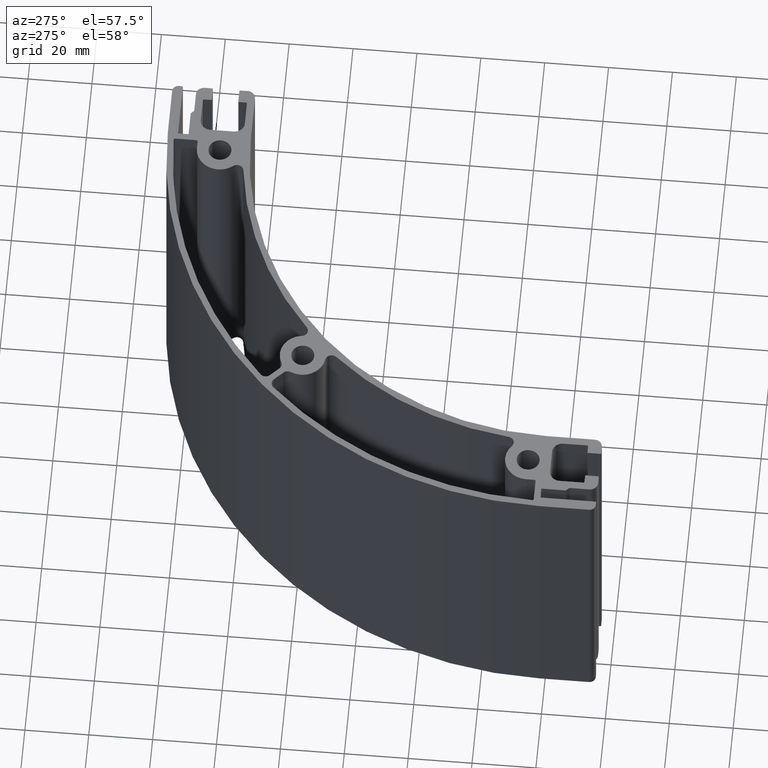
[diagram: clean part render]
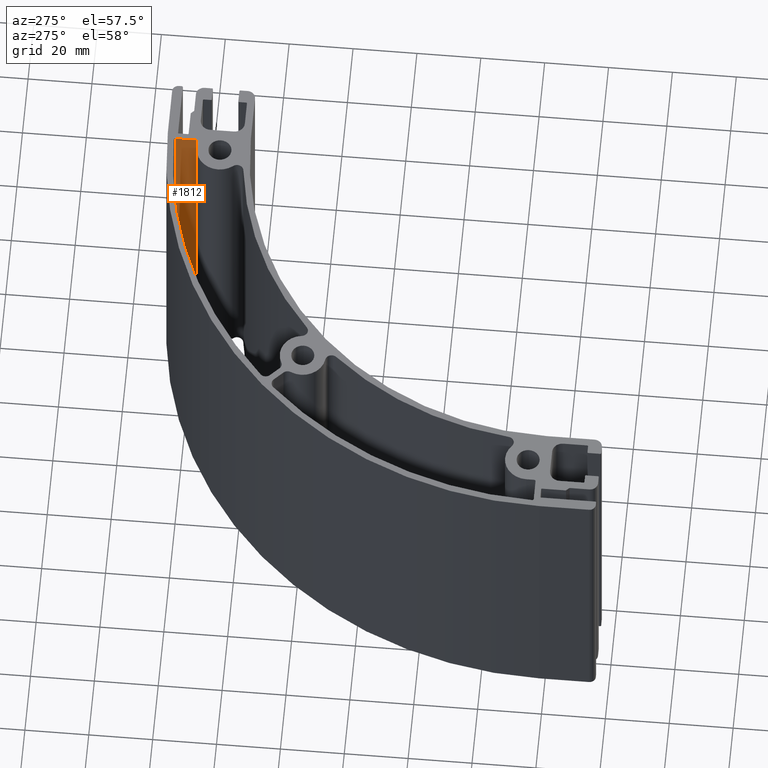
[diagram: same view with one face highlighted and labeled with its STEP entity id]
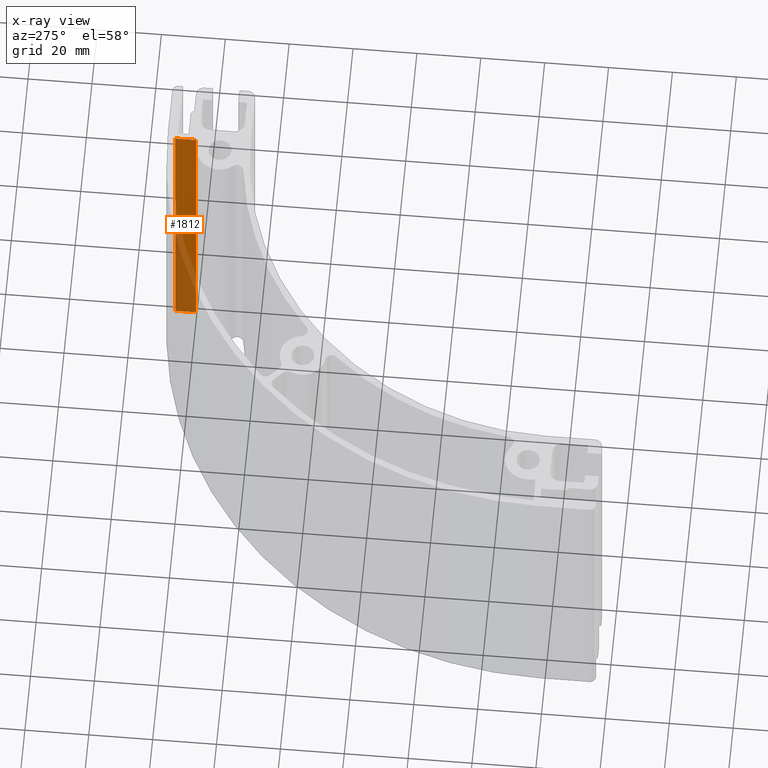
[diagram: x-ray of the same camera — body ghosted, the highlighted face saturated]
A machine part, auxiliary view. The second image highlights one B-rep face of the part: STEP entity #1812.
The next image is the same camera in x-ray: the body ghosted, the highlighted face saturated — about 39% of this face is hidden behind the body in this view.
In plain terms, the highlighted planar face has unit normal (1, 0, 0).
Its self-contained STEP definition (entity closure, byte-faithful):
#29=PLANE('',#1953);
#84=FACE_OUTER_BOUND('',#179,.T.);
#179=EDGE_LOOP('',(#1252,#1253,#1254,#1255));
#292=LINE('',#2792,#465);
#293=LINE('',#2796,#466);
#294=LINE('',#2798,#467);
#295=LINE('',#2799,#468);
#465=VECTOR('',#2222,10.);
#466=VECTOR('',#2227,10.);
#467=VECTOR('',#2228,10.);
#468=VECTOR('',#2229,10.);
#753=VERTEX_POINT('',#2789);
#754=VERTEX_POINT('',#2791);
#755=VERTEX_POINT('',#2795);
#756=VERTEX_POINT('',#2797);
#955=EDGE_CURVE('',#753,#754,#292,.T.);
#957=EDGE_CURVE('',#755,#753,#293,.T.);
#958=EDGE_CURVE('',#755,#756,#294,.T.);
#959=EDGE_CURVE('',#754,#756,#295,.T.);
#1252=ORIENTED_EDGE('',*,*,#957,.F.);
#1253=ORIENTED_EDGE('',*,*,#958,.T.);
#1254=ORIENTED_EDGE('',*,*,#959,.F.);
#1255=ORIENTED_EDGE('',*,*,#955,.F.);
#1812=ADVANCED_FACE('',(#84),#29,.F.);
#1953=AXIS2_PLACEMENT_3D('',#2794,#2225,#2226);
#2222=DIRECTION('',(0.,0.,1.));
#2225=DIRECTION('center_axis',(1.,0.,0.));
#2226=DIRECTION('ref_axis',(0.,1.,0.));
#2227=DIRECTION('',(0.,1.,0.));
#2228=DIRECTION('',(0.,0.,1.));
#2229=DIRECTION('',(0.,-1.,0.));
#2789=CARTESIAN_POINT('',(76.3918442824252,46.5831532170747,0.));
#2791=CARTESIAN_POINT('',(76.3918442824252,46.5831532170747,100.));
#2792=CARTESIAN_POINT('',(76.3918442824252,46.5831532170747,0.));
#2794=CARTESIAN_POINT('Origin',(76.3918442824252,40.0581557175748,0.));
#2795=CARTESIAN_POINT('',(76.3918442824252,40.0581557175748,0.));
#2796=CARTESIAN_POINT('',(76.3918442824252,12.8265668450976,0.));
#2797=CARTESIAN_POINT('',(76.3918442824252,40.0581557175748,100.));
#2798=CARTESIAN_POINT('',(76.3918442824252,40.0581557175748,0.));
#2799=CARTESIAN_POINT('',(76.3918442824252,12.8265668450976,100.));